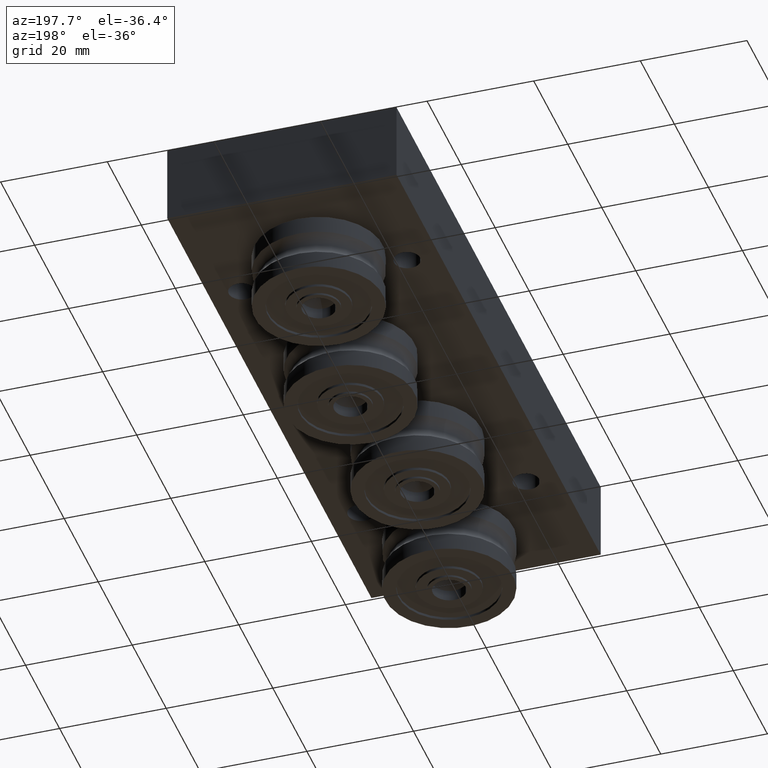
[diagram: clean part render]
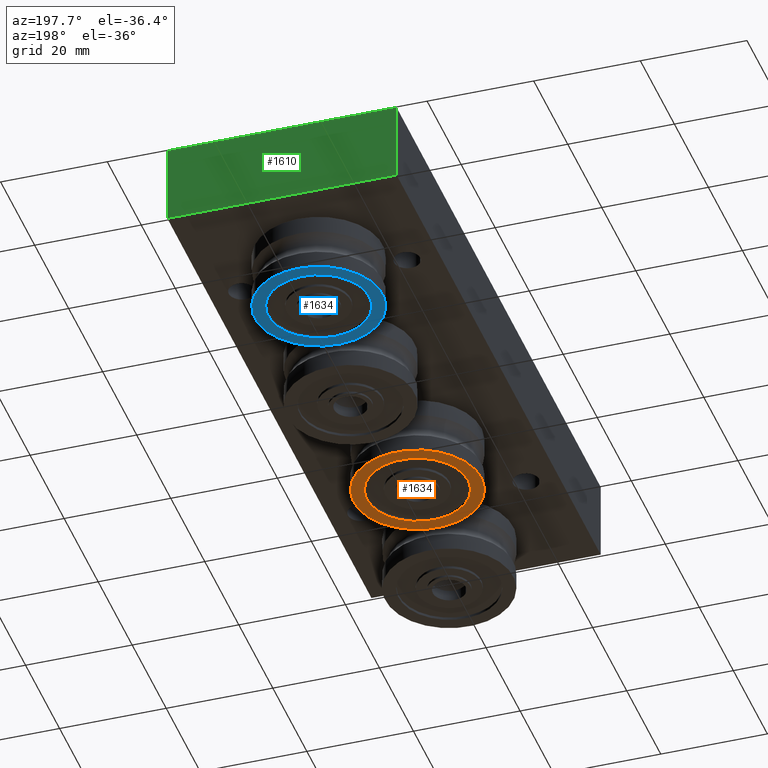
[diagram: same view with three faces highlighted in distinct colors, each labeled with its STEP entity id]
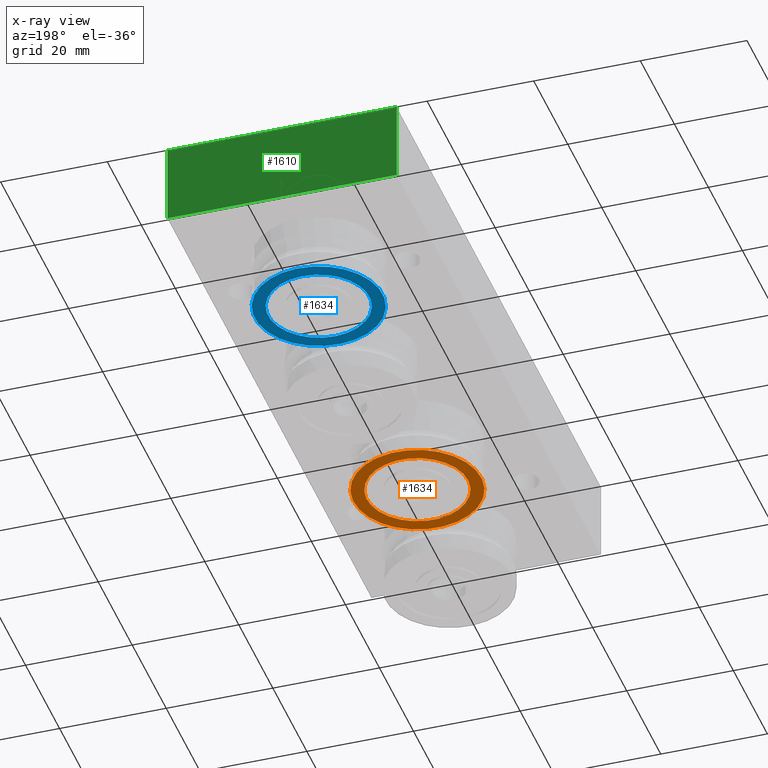
[diagram: x-ray of the same camera — body ghosted, the three highlighted faces saturated]
A machine part, auxiliary view with three faces highlighted in distinct colors.
The next image is the same camera in x-ray (body ghosted, the three faces saturated) — at least one of them is partly hidden behind the body in this view.
Their STEP definitions:

[orange] entity #1634 — the highlighted planar face has unit normal (-0, -0, -1).
#410=FACE_BOUND('',#606,.T.);
#472=FACE_OUTER_BOUND('',#605,.T.);
#605=EDGE_LOOP('',(#1307));
#606=EDGE_LOOP('',(#1308));
#722=CIRCLE('',#1993,9.5);
#723=CIRCLE('',#1995,12.);
#838=VERTEX_POINT('',#2884);
#839=VERTEX_POINT('',#2888);
#1008=EDGE_CURVE('',#838,#838,#722,.T.);
#1009=EDGE_CURVE('',#839,#839,#723,.T.);
#1307=ORIENTED_EDGE('',*,*,#1009,.F.);
#1308=ORIENTED_EDGE('',*,*,#1008,.T.);
#1559=PLANE('',#1994);
#1634=ADVANCED_FACE('',(#472,#410),#1559,.T.);
#1993=AXIS2_PLACEMENT_3D('',#2886,#2358,#2359);
#1994=AXIS2_PLACEMENT_3D('',#2887,#2360,#2361);
#1995=AXIS2_PLACEMENT_3D('',#2889,#2362,#2363);
#2358=DIRECTION('center_axis',(1.,0.,0.));
#2359=DIRECTION('ref_axis',(0.,1.,0.));
#2360=DIRECTION('center_axis',(-1.,0.,0.));
#2361=DIRECTION('ref_axis',(0.,0.,1.));
#2362=DIRECTION('center_axis',(1.,0.,0.));
#2363=DIRECTION('ref_axis',(0.,1.,0.));
#2884=CARTESIAN_POINT('',(-5.5,-9.5,-1.16341445918999E-15));
#2886=CARTESIAN_POINT('Origin',(-5.5,0.,0.));
#2887=CARTESIAN_POINT('Origin',(-5.5,10.75,0.));
#2888=CARTESIAN_POINT('',(-5.5,-12.,-1.46957615897682E-15));
#2889=CARTESIAN_POINT('Origin',(-5.5,0.,0.));

[blue] entity #1634 — the highlighted planar face has unit normal (0, 0, -1).
#410=FACE_BOUND('',#606,.T.);
#472=FACE_OUTER_BOUND('',#605,.T.);
#605=EDGE_LOOP('',(#1307));
#606=EDGE_LOOP('',(#1308));
#722=CIRCLE('',#1993,9.5);
#723=CIRCLE('',#1995,12.);
#838=VERTEX_POINT('',#2884);
#839=VERTEX_POINT('',#2888);
#1008=EDGE_CURVE('',#838,#838,#722,.T.);
#1009=EDGE_CURVE('',#839,#839,#723,.T.);
#1307=ORIENTED_EDGE('',*,*,#1009,.F.);
#1308=ORIENTED_EDGE('',*,*,#1008,.T.);
#1559=PLANE('',#1994);
#1634=ADVANCED_FACE('',(#472,#410),#1559,.T.);
#1993=AXIS2_PLACEMENT_3D('',#2886,#2358,#2359);
#1994=AXIS2_PLACEMENT_3D('',#2887,#2360,#2361);
#1995=AXIS2_PLACEMENT_3D('',#2889,#2362,#2363);
#2358=DIRECTION('center_axis',(1.,0.,0.));
#2359=DIRECTION('ref_axis',(0.,1.,0.));
#2360=DIRECTION('center_axis',(-1.,0.,0.));
#2361=DIRECTION('ref_axis',(0.,0.,1.));
#2362=DIRECTION('center_axis',(1.,0.,0.));
#2363=DIRECTION('ref_axis',(0.,1.,0.));
#2884=CARTESIAN_POINT('',(-5.5,-9.5,-1.16341445918999E-15));
#2886=CARTESIAN_POINT('Origin',(-5.5,0.,0.));
#2887=CARTESIAN_POINT('Origin',(-5.5,10.75,0.));
#2888=CARTESIAN_POINT('',(-5.5,-12.,-1.46957615897682E-15));
#2889=CARTESIAN_POINT('Origin',(-5.5,0.,0.));

[green] entity #1610 — the highlighted planar face has unit normal (-0, 1, 0).
#144=LINE('',#2779,#250);
#148=LINE('',#2786,#254);
#149=LINE('',#2789,#255);
#150=LINE('',#2790,#256);
#250=VECTOR('',#2242,10.);
#254=VECTOR('',#2248,10.);
#255=VECTOR('',#2251,10.);
#256=VECTOR('',#2252,10.);
#448=FACE_OUTER_BOUND('',#565,.T.);
#565=EDGE_LOOP('',(#1205,#1206,#1207,#1208));
#806=VERTEX_POINT('',#2776);
#807=VERTEX_POINT('',#2778);
#809=VERTEX_POINT('',#2784);
#810=VERTEX_POINT('',#2788);
#960=EDGE_CURVE('',#806,#807,#144,.T.);
#964=EDGE_CURVE('',#806,#809,#148,.T.);
#965=EDGE_CURVE('',#810,#809,#149,.T.);
#966=EDGE_CURVE('',#807,#810,#150,.T.);
#1205=ORIENTED_EDGE('',*,*,#964,.T.);
#1206=ORIENTED_EDGE('',*,*,#965,.F.);
#1207=ORIENTED_EDGE('',*,*,#966,.F.);
#1208=ORIENTED_EDGE('',*,*,#960,.F.);
#1543=PLANE('',#1954);
#1610=ADVANCED_FACE('',(#448),#1543,.T.);
#1954=AXIS2_PLACEMENT_3D('',#2787,#2249,#2250);
#2242=DIRECTION('',(-1.,0.,4.13106241720989E-16));
#2248=DIRECTION('',(0.,1.,0.));
#2249=DIRECTION('center_axis',(4.13106241720989E-16,0.,1.));
#2250=DIRECTION('ref_axis',(1.,0.,-4.13106241720989E-16));
#2251=DIRECTION('',(1.,0.,-4.13106241720989E-16));
#2252=DIRECTION('',(0.,1.,0.));
#2776=CARTESIAN_POINT('',(21.5,-7.5,60.));
#2778=CARTESIAN_POINT('',(-21.5,-7.5,60.));
#2779=CARTESIAN_POINT('',(-21.5,-7.5,60.));
#2784=CARTESIAN_POINT('',(21.5,7.5,60.));
#2786=CARTESIAN_POINT('',(21.5,0.,60.));
#2787=CARTESIAN_POINT('Origin',(-21.5,0.,60.));
#2788=CARTESIAN_POINT('',(-21.5,7.5,60.));
#2789=CARTESIAN_POINT('',(-21.5,7.5,60.));
#2790=CARTESIAN_POINT('',(-21.5,0.,60.));